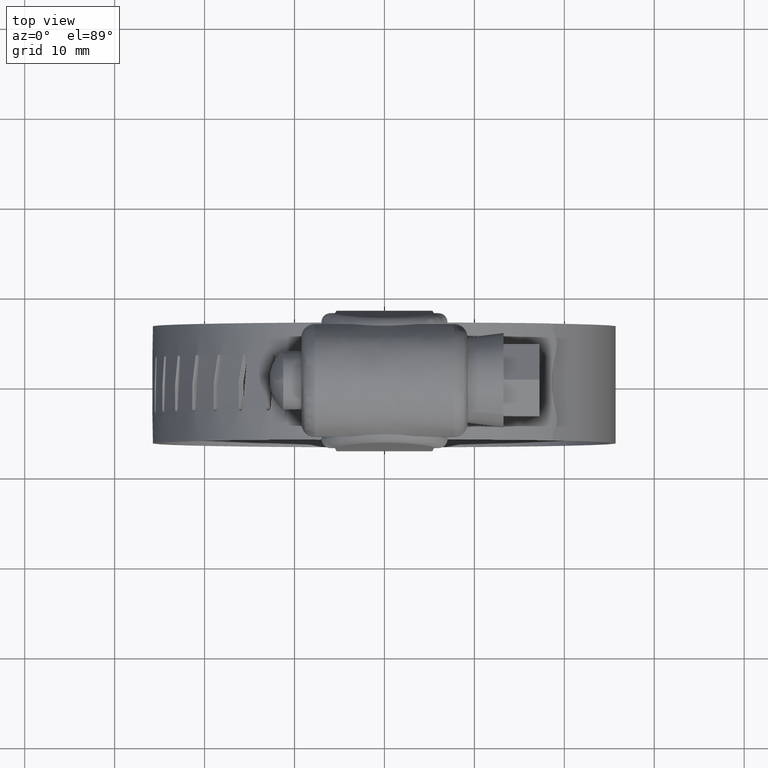
[diagram: clean part render]
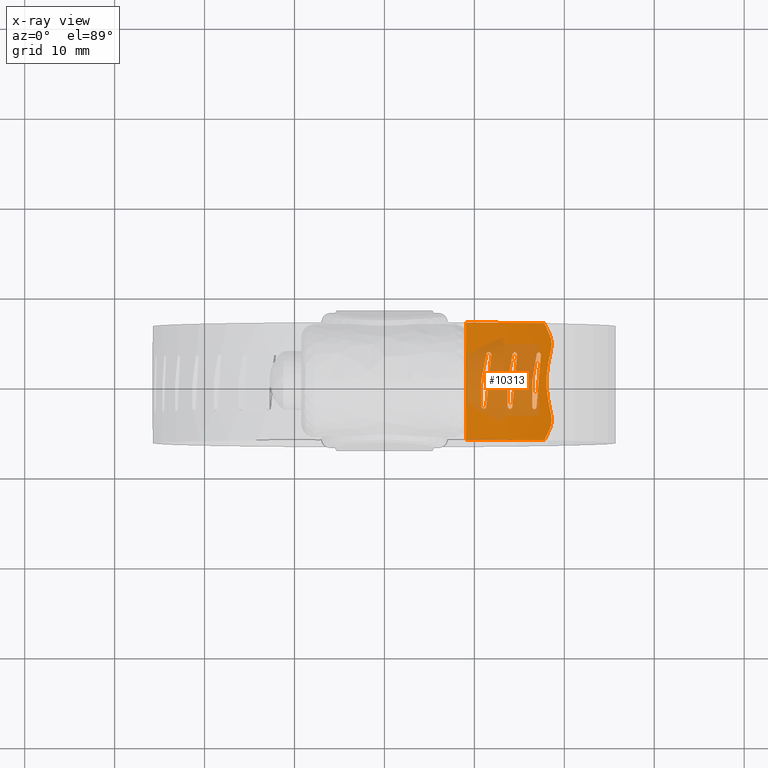
[diagram: x-ray — body ghosted, one internal face saturated and labeled with its STEP entity id]
A machine part, top view, then the same camera in x-ray: the body is ghosted and one INTERNAL B-rep face — a face not visible from any outside direction — is saturated and labeled: STEP entity #10313.
In plain terms, the highlighted face is a freeform B-spline surface patch.
Its self-contained STEP definition (entity closure, byte-faithful):
#3703=CARTESIAN_POINT('',(18.531749850765149,3.681800700683060,4.845432131543960));
#3704=VERTEX_POINT('',#3703);
#3710=CARTESIAN_POINT('',(18.372071879802899,5.226117512658741,4.993683557084380));
#3711=VERTEX_POINT('',#3710);
#3712=CARTESIAN_POINT('',(18.372071879802899,5.226117512658741,4.993683557084380));
#3713=CARTESIAN_POINT('',(18.428721101683500,5.097398075868691,4.940893515069665));
#3714=CARTESIAN_POINT('',(18.515501894939291,4.837661498247234,4.860053634746276));
#3715=CARTESIAN_POINT('',(18.599563676843101,4.313282900128496,4.781873289322854));
#3716=CARTESIAN_POINT('',(18.579124276364229,3.923649804685160,4.801122762537977));
#3717=CARTESIAN_POINT('',(18.531749850765149,3.681800700683060,4.845432131543960));
#3718=B_SPLINE_CURVE_WITH_KNOTS('',3,(#3712,#3713,#3714,#3715,#3716,#3717),.UNSPECIFIED.,.F.,.U.,(4,1,1,4),(0.000000013377488,0.450645718569237,0.851219328411695,1.602295761285598),.UNSPECIFIED.);
#3719=EDGE_CURVE('',#3711,#3704,#3718,.T.);
#3756=CARTESIAN_POINT('',(18.372071879802949,-5.226117512658870,4.993683557084300));
#3757=VERTEX_POINT('',#3756);
#3763=CARTESIAN_POINT('',(18.531749850765099,-3.681800700683050,4.845432131544020));
#3764=VERTEX_POINT('',#3763);
#3765=CARTESIAN_POINT('',(18.531749850765099,-3.681800700683050,4.845432131544020));
#3766=CARTESIAN_POINT('',(18.566477553637569,-3.859161243492954,4.813106576496261));
#3767=CARTESIAN_POINT('',(18.595172502507570,-4.176882024630355,4.786368814088042));
#3768=CARTESIAN_POINT('',(18.549992006251180,-4.710119230865465,4.828300633605239));
#3769=CARTESIAN_POINT('',(18.454058360740191,-5.040227927177436,4.917465894430944));
#3770=CARTESIAN_POINT('',(18.372071879802949,-5.226117512658870,4.993683557084300));
#3771=B_SPLINE_CURVE_WITH_KNOTS('',3,(#3765,#3766,#3767,#3768,#3769,#3770),.UNSPECIFIED.,.F.,.U.,(4,1,1,4),(0.000000013378688,0.550790148088924,0.951364039461560,1.602297993719811),.UNSPECIFIED.);
#3772=EDGE_CURVE('',#3764,#3757,#3771,.T.);
#3808=CARTESIAN_POINT('',(18.213016226979452,-2.061301204482720,5.138611565405960));
#3809=VERTEX_POINT('',#3808);
#3815=CARTESIAN_POINT('',(18.213016226979502,2.061301204482655,5.138611565405910));
#3816=VERTEX_POINT('',#3815);
#3817=CARTESIAN_POINT('',(18.213016226979502,2.061301204482655,5.138611565405910));
#3818=CARTESIAN_POINT('',(18.112457629859129,1.557781310917107,5.228369178004182));
#3819=CARTESIAN_POINT('',(17.993353794414261,0.588815301786837,5.334680087532984));
#3820=CARTESIAN_POINT('',(18.014611649058459,-0.805997070332391,5.315705536013385));
#3821=CARTESIAN_POINT('',(18.133430079847599,-1.662677442643645,5.209649375866770));
#3822=CARTESIAN_POINT('',(18.213016226979452,-2.061301204482720,5.138611565405960));
#3823=B_SPLINE_CURVE_WITH_KNOTS('',3,(#3817,#3818,#3819,#3820,#3821,#3822),.UNSPECIFIED.,.F.,.U.,(4,1,1,4),(6.487834E-009,1.563736920964242,2.931997803589093,4.169955152333706),.UNSPECIFIED.);
#3824=EDGE_CURVE('',#3816,#3809,#3823,.T.);
#8995=CARTESIAN_POINT('',(10.755661920870120,-0.159976000000114,9.658509644301040));
#8996=VERTEX_POINT('',#8995);
#9011=CARTESIAN_POINT('',(10.755661920870020,-2.747701999999965,9.658509644300890));
#9012=VERTEX_POINT('',#9011);
#9018=CARTESIAN_POINT('',(10.755661920870120,-0.159976000000114,9.658509644301040));
#9019=CARTESIAN_POINT('',(10.755661920870020,-2.747701999999965,9.658509644300890));
#9020=QUASI_UNIFORM_CURVE('',1,(#9018,#9019),.UNSPECIFIED.,.F.,.U.);
#9021=EDGE_CURVE('',#8996,#9012,#9020,.T.);
#9031=CARTESIAN_POINT('',(10.786279146039959,0.255129999999980,9.647118583808400));
#9032=VERTEX_POINT('',#9031);
#9046=CARTESIAN_POINT('',(10.786279146039959,0.255129999999980,9.647118583808400));
#9047=CARTESIAN_POINT('',(10.755661920870120,-0.159976000000114,9.658509644301040));
#9048=QUASI_UNIFORM_CURVE('',1,(#9046,#9047),.UNSPECIFIED.,.F.,.U.);
#9049=EDGE_CURVE('',#9032,#8996,#9048,.T.);
#9059=CARTESIAN_POINT('',(11.322736609040140,2.952297999999900,9.439474695730588));
#9060=VERTEX_POINT('',#9059);
#9074=CARTESIAN_POINT('',(11.322736609040140,2.952297999999900,9.439474695730588));
#9075=CARTESIAN_POINT('',(10.786279146039959,0.255129999999980,9.647118583808400));
#9076=QUASI_UNIFORM_CURVE('',1,(#9074,#9075),.UNSPECIFIED.,.F.,.U.);
#9077=EDGE_CURVE('',#9060,#9032,#9076,.T.);
#9100=CARTESIAN_POINT('',(11.875603650228721,2.889831999999900,9.209199134267740));
#9101=VERTEX_POINT('',#9100);
#9132=CARTESIAN_POINT('',(11.632041403289589,3.250697324277313,9.312714836548986));
#9133=VERTEX_POINT('',#9132);
#9134=CARTESIAN_POINT('',(11.632041403289589,3.250697324277313,9.312714836548986));
#9135=CARTESIAN_POINT('',(11.588613578229459,3.255752021100881,9.330830177831119));
#9136=CARTESIAN_POINT('',(11.514439350840000,3.245163773002378,9.361640920711844));
#9137=CARTESIAN_POINT('',(11.416234280023369,3.184347694458341,9.402117047985026));
#9138=CARTESIAN_POINT('',(11.343794209291270,3.088723026751191,9.431630424336111));
#9139=CARTESIAN_POINT('',(11.323110687820520,2.999620489108655,9.439639129679778));
#9140=CARTESIAN_POINT('',(11.322736609040140,2.952297999999900,9.439474695730588));
#9141=B_SPLINE_CURVE_WITH_KNOTS('',3,(#9134,#9135,#9136,#9137,#9138,#9139,#9140),.UNSPECIFIED.,.F.,.U.,(4,1,1,1,4),(0.000000118933733,0.141940418083594,0.236576205794060,0.362721514907868,0.504661681111708),.UNSPECIFIED.);
#9142=EDGE_CURVE('',#9133,#9060,#9141,.T.);
#9144=CARTESIAN_POINT('',(11.875603650228721,2.889831999999900,9.209199134267740));
#9145=CARTESIAN_POINT('',(11.882425002335300,2.925821900597792,9.206606379640260));
#9146=CARTESIAN_POINT('',(11.883865115317580,3.005826601008934,9.206540233581183));
#9147=CARTESIAN_POINT('',(11.842722805675830,3.120670246655562,9.224384154208197));
#9148=CARTESIAN_POINT('',(11.755067961074900,3.215083603738272,9.261402433792927));
#9149=CARTESIAN_POINT('',(11.675419389651831,3.245784680842094,9.294673381308481));
#9150=CARTESIAN_POINT('',(11.632041403289589,3.250697324277313,9.312714836548986));
#9151=B_SPLINE_CURVE_WITH_KNOTS('',3,(#9144,#9145,#9146,#9147,#9148,#9149,#9150),.UNSPECIFIED.,.F.,.U.,(4,1,1,1,4),(0.000000302845057,0.110178803302188,0.236122009980797,0.362024835110498,0.503692366461664),.UNSPECIFIED.);
#9152=EDGE_CURVE('',#9101,#9133,#9151,.T.);
#9162=CARTESIAN_POINT('',(11.322736609040000,-2.747702000000000,9.439474695730368));
#9163=VERTEX_POINT('',#9162);
#9177=CARTESIAN_POINT('',(11.322736609040000,-2.747702000000000,9.439474695730368));
#9178=CARTESIAN_POINT('',(11.875603650228721,2.889831999999900,9.209199134267740));
#9179=QUASI_UNIFORM_CURVE('',1,(#9177,#9178),.UNSPECIFIED.,.F.,.U.);
#9180=EDGE_CURVE('',#9163,#9101,#9179,.T.);
#9227=CARTESIAN_POINT('',(11.040017141032591,-3.047701921533778,9.550814833458686));
#9228=VERTEX_POINT('',#9227);
#9229=CARTESIAN_POINT('',(11.040017141032591,-3.047701921533778,9.550814833458686));
#9230=CARTESIAN_POINT('',(11.076821893877231,-3.047727719213054,9.536599011384972));
#9231=CARTESIAN_POINT('',(11.154960883060600,-3.031135907438981,9.506299197061404));
#9232=CARTESIAN_POINT('',(11.251453289672019,-2.958985255850101,9.468514260216777));
#9233=CARTESIAN_POINT('',(11.309808295543750,-2.856011556127145,9.445240360304588));
#9234=CARTESIAN_POINT('',(11.322417956780070,-2.782217471100631,9.439843807121369));
#9235=CARTESIAN_POINT('',(11.322736609040000,-2.747702000000000,9.439474695730368));
#9236=B_SPLINE_CURVE_WITH_KNOTS('',3,(#9229,#9230,#9231,#9232,#9233,#9234,#9235),.UNSPECIFIED.,.F.,.U.,(4,1,1,1,4),(0.000000236341869,0.118368037078563,0.251515569286743,0.369898720770105,0.473465913465799),.UNSPECIFIED.);
#9237=EDGE_CURVE('',#9228,#9163,#9236,.T.);
#9239=CARTESIAN_POINT('',(10.755661920870020,-2.747701999999965,9.658509644300890));
#9240=CARTESIAN_POINT('',(10.756292365318039,-2.797057160310758,9.658617942287771));
#9241=CARTESIAN_POINT('',(10.774634085612600,-2.870713325170354,9.652058415518383));
#9242=CARTESIAN_POINT('',(10.836984417228230,-2.963653109381317,9.628637857257623));
#9243=CARTESIAN_POINT('',(10.920346488483069,-3.029051444960962,9.596905118817764));
#9244=CARTESIAN_POINT('',(10.998585574889050,-3.047781693144976,9.566818496363320));
#9245=CARTESIAN_POINT('',(11.040017141032591,-3.047701921533778,9.550814833458686));
#9246=B_SPLINE_CURVE_WITH_KNOTS('',3,(#9239,#9240,#9241,#9242,#9243,#9244,#9245),.UNSPECIFIED.,.F.,.U.,(4,1,1,1,4),(0.000000205957075,0.148025932110320,0.222048530185676,0.340453081173145,0.473678424284603),.UNSPECIFIED.);
#9247=EDGE_CURVE('',#9012,#9228,#9246,.T.);
#9257=CARTESIAN_POINT('',(13.698748350135840,-0.159976000000114,8.325479089140609));
#9258=VERTEX_POINT('',#9257);
#9273=CARTESIAN_POINT('',(13.698748350135640,-2.747701999999965,8.325479089140389));
#9274=VERTEX_POINT('',#9273);
#9280=CARTESIAN_POINT('',(13.698748350135840,-0.159976000000114,8.325479089140609));
#9281=CARTESIAN_POINT('',(13.698748350135640,-2.747701999999965,8.325479089140389));
#9282=QUASI_UNIFORM_CURVE('',1,(#9280,#9281),.UNSPECIFIED.,.F.,.U.);
#9283=EDGE_CURVE('',#9258,#9274,#9282,.T.);
#9293=CARTESIAN_POINT('',(13.727482050536519,0.255129999999980,8.309937499951902));
#9294=VERTEX_POINT('',#9293);
#9308=CARTESIAN_POINT('',(13.727482050536519,0.255129999999980,8.309937499951902));
#9309=CARTESIAN_POINT('',(13.698748350135840,-0.159976000000114,8.325479089140609));
#9310=QUASI_UNIFORM_CURVE('',1,(#9308,#9309),.UNSPECIFIED.,.F.,.U.);
#9311=EDGE_CURVE('',#9294,#9258,#9310,.T.);
#9321=CARTESIAN_POINT('',(14.229816255630359,2.952297999999900,8.029648827779232));
#9322=VERTEX_POINT('',#9321);
#9336=CARTESIAN_POINT('',(14.229816255630359,2.952297999999900,8.029648827779232));
#9337=CARTESIAN_POINT('',(13.727482050536519,0.255129999999980,8.309937499951902));
#9338=QUASI_UNIFORM_CURVE('',1,(#9336,#9337),.UNSPECIFIED.,.F.,.U.);
#9339=EDGE_CURVE('',#9322,#9294,#9338,.T.);
#9362=CARTESIAN_POINT('',(14.745250487097760,2.889831999999900,7.724664790017380));
#9363=VERTEX_POINT('',#9362);
#9394=CARTESIAN_POINT('',(14.518467069768770,3.250697317928519,7.861072695521489));
#9395=VERTEX_POINT('',#9394);
#9396=CARTESIAN_POINT('',(14.518467069768770,3.250697317928519,7.861072695521489));
#9397=CARTESIAN_POINT('',(14.477979857052770,3.255754528527071,7.885058240477811));
#9398=CARTESIAN_POINT('',(14.418056175633501,3.246559569056024,7.920437343036269));
#9399=CARTESIAN_POINT('',(14.324430244815440,3.191789741164849,7.975421132212874));
#9400=CARTESIAN_POINT('',(14.251824244945629,3.099255764835148,8.017697232289116));
#9401=CARTESIAN_POINT('',(14.230212120653530,2.999609746322210,8.029758013462674));
#9402=CARTESIAN_POINT('',(14.229816255630359,2.952297999999900,8.029648827779232));
#9403=B_SPLINE_CURVE_WITH_KNOTS('',3,(#9396,#9397,#9398,#9399,#9400,#9401,#9402),.UNSPECIFIED.,.F.,.U.,(4,1,1,1,4),(0.000000118966180,0.141940331938517,0.205039246471225,0.362721294711938,0.504661374760768),.UNSPECIFIED.);
#9404=EDGE_CURVE('',#9395,#9322,#9403,.T.);
#9406=CARTESIAN_POINT('',(14.745250487097760,2.889831999999900,7.724664790017380));
#9407=CARTESIAN_POINT('',(14.751640266243831,2.925819902490897,7.721150374700229));
#9408=CARTESIAN_POINT('',(14.753067424368711,3.005829348492539,7.720878403440719));
#9409=CARTESIAN_POINT('',(14.714799519589990,3.120665773519722,7.744280634847740));
#9410=CARTESIAN_POINT('',(14.633157913140311,3.215093045090326,7.793134318389584));
#9411=CARTESIAN_POINT('',(14.558909999055871,3.245777144411740,7.837170300168279));
#9412=CARTESIAN_POINT('',(14.518467069768770,3.250697317928519,7.861072695521489));
#9413=B_SPLINE_CURVE_WITH_KNOTS('',3,(#9406,#9407,#9408,#9409,#9410,#9411,#9412),.UNSPECIFIED.,.F.,.U.,(4,1,1,1,4),(0.000000302846476,0.110178768409326,0.236121935254649,0.362024720478795,0.503692206985464),.UNSPECIFIED.);
#9414=EDGE_CURVE('',#9363,#9395,#9413,.T.);
#9424=CARTESIAN_POINT('',(14.229816255630359,-2.747702000000000,8.029648827779232));
#9425=VERTEX_POINT('',#9424);
#9439=CARTESIAN_POINT('',(14.229816255630359,-2.747702000000000,8.029648827779232));
#9440=CARTESIAN_POINT('',(14.745250487097760,2.889831999999900,7.724664790017380));
#9441=QUASI_UNIFORM_CURVE('',1,(#9439,#9440),.UNSPECIFIED.,.F.,.U.);
#9442=EDGE_CURVE('',#9425,#9363,#9441,.T.);
#9489=CARTESIAN_POINT('',(13.965345893731859,-3.047701921544975,8.179255043064925));
#9490=VERTEX_POINT('',#9489);
#9491=CARTESIAN_POINT('',(13.965345893731859,-3.047701921544975,8.179255043064925));
#9492=CARTESIAN_POINT('',(14.008445602240990,-3.047784657238257,8.155247047147268));
#9493=CARTESIAN_POINT('',(14.081512278022000,-3.026796709961574,8.114385621860391));
#9494=CARTESIAN_POINT('',(14.167789383076730,-2.950367657758241,8.065743364571169));
#9495=CARTESIAN_POINT('',(14.217825257356280,-2.856016087571731,8.037152813606651));
#9496=CARTESIAN_POINT('',(14.229550543773090,-2.782218683554972,8.030059561493935));
#9497=CARTESIAN_POINT('',(14.229816255630359,-2.747702000000000,8.029648827779232));
#9498=B_SPLINE_CURVE_WITH_KNOTS('',3,(#9491,#9492,#9493,#9494,#9495,#9496,#9497),.UNSPECIFIED.,.F.,.U.,(4,1,1,1,4),(0.000000236341146,0.147959430396395,0.251515402743837,0.369898475892163,0.473465600013614),.UNSPECIFIED.);
#9499=EDGE_CURVE('',#9490,#9425,#9498,.T.);
#9501=CARTESIAN_POINT('',(13.698748350135640,-2.747701999999965,8.325479089140389));
#9502=CARTESIAN_POINT('',(13.699293950707929,-2.787171668156547,8.325475581981415));
#9503=CARTESIAN_POINT('',(13.715002009490760,-2.870795291012926,8.317361939633052));
#9504=CARTESIAN_POINT('',(13.779567629304459,-2.973520140280186,8.282177708695611));
#9505=CARTESIAN_POINT('',(13.870482510580880,-3.035013947596902,8.232001866735477));
#9506=CARTESIAN_POINT('',(13.935176718903129,-3.047732694348785,8.196060936280402));
#9507=CARTESIAN_POINT('',(13.965345893731859,-3.047701921544975,8.179255043064925));
#9508=B_SPLINE_CURVE_WITH_KNOTS('',3,(#9501,#9502,#9503,#9504,#9505,#9506,#9507),.UNSPECIFIED.,.F.,.U.,(4,1,1,1,4),(0.000000205959462,0.118421076963226,0.251628231958747,0.370064498488739,0.473678095208348),.UNSPECIFIED.);
#9509=EDGE_CURVE('',#9274,#9490,#9508,.T.);
#9519=CARTESIAN_POINT('',(16.427641298537349,-0.159976000000114,6.595799925318890));
#9520=VERTEX_POINT('',#9519);
#9535=CARTESIAN_POINT('',(16.427641298537150,-2.747701999999965,6.595799925318840));
#9536=VERTEX_POINT('',#9535);
#9542=CARTESIAN_POINT('',(16.427641298537349,-0.159976000000114,6.595799925318890));
#9543=CARTESIAN_POINT('',(16.427641298537150,-2.747701999999965,6.595799925318840));
#9544=QUASI_UNIFORM_CURVE('',1,(#9542,#9543),.UNSPECIFIED.,.F.,.U.);
#9545=EDGE_CURVE('',#9520,#9536,#9544,.T.);
#9555=CARTESIAN_POINT('',(16.453932137324699,0.255129999999980,6.576410383527410));
#9556=VERTEX_POINT('',#9555);
#9570=CARTESIAN_POINT('',(16.453932137324699,0.255129999999980,6.576410383527410));
#9571=CARTESIAN_POINT('',(16.427641298537349,-0.159976000000114,6.595799925318890));
#9572=QUASI_UNIFORM_CURVE('',1,(#9570,#9571),.UNSPECIFIED.,.F.,.U.);
#9573=EDGE_CURVE('',#9556,#9520,#9572,.T.);
#9583=CARTESIAN_POINT('',(16.912364527524101,2.952297999999900,6.228933772843730));
#9584=VERTEX_POINT('',#9583);
#9598=CARTESIAN_POINT('',(16.912364527524101,2.952297999999900,6.228933772843730));
#9599=CARTESIAN_POINT('',(16.453932137324699,0.255129999999980,6.576410383527410));
#9600=QUASI_UNIFORM_CURVE('',1,(#9598,#9599),.UNSPECIFIED.,.F.,.U.);
#9601=EDGE_CURVE('',#9584,#9556,#9600,.T.);
#9624=CARTESIAN_POINT('',(17.380332375436250,2.889831999999900,5.855178816365420));
#9625=VERTEX_POINT('',#9624);
#9656=CARTESIAN_POINT('',(17.174742401530359,3.250697311889076,6.021823274380849));
#9657=VERTEX_POINT('',#9656);
#9658=CARTESIAN_POINT('',(17.174742401530359,3.250697311889076,6.021823274380849));
#9659=CARTESIAN_POINT('',(17.129817341203260,3.256965933790909,6.057743788534452));
#9660=CARTESIAN_POINT('',(17.049858024687740,3.237887963560139,6.121434807033525));
#9661=CARTESIAN_POINT('',(16.974301966737190,3.160509999916735,6.181144056191251));
#9662=CARTESIAN_POINT('',(16.926312238720762,3.067741855968122,6.218719959547319));
#9663=CARTESIAN_POINT('',(16.912759395623159,2.999626553910123,6.228996784482030));
#9664=CARTESIAN_POINT('',(16.912364527524101,2.952297999999900,6.228933772843730));
#9665=B_SPLINE_CURVE_WITH_KNOTS('',3,(#9658,#9659,#9660,#9661,#9662,#9663,#9664),.UNSPECIFIED.,.F.,.U.,(4,1,1,1,4),(0.000000118996361,0.173481377413054,0.299622275439196,0.362721085250155,0.504661083344051),.UNSPECIFIED.);
#9666=EDGE_CURVE('',#9657,#9584,#9665,.T.);
#9668=CARTESIAN_POINT('',(17.380332375436250,2.889831999999900,5.855178816365420));
#9669=CARTESIAN_POINT('',(17.386174298339789,2.925822359993450,5.850806495793099));
#9670=CARTESIAN_POINT('',(17.387541781615479,3.005827137173803,5.850344814622960));
#9671=CARTESIAN_POINT('',(17.352910427374990,3.120666678961560,5.878840078023951));
#9672=CARTESIAN_POINT('',(17.278860887208719,3.215092957692282,5.938583177709360));
#9673=CARTESIAN_POINT('',(17.211463876644729,3.245777791133571,5.992525328388616));
#9674=CARTESIAN_POINT('',(17.174742401530359,3.250697311889076,6.021823274380849));
#9675=B_SPLINE_CURVE_WITH_KNOTS('',3,(#9668,#9669,#9670,#9671,#9672,#9673,#9674),.UNSPECIFIED.,.F.,.U.,(4,1,1,1,4),(0.000000302847512,0.110178735217235,0.236121864171200,0.362024611435213,0.503692055283458),.UNSPECIFIED.);
#9676=EDGE_CURVE('',#9625,#9657,#9675,.T.);
#9686=CARTESIAN_POINT('',(16.912364527524549,-2.747702000000000,6.228933772844171));
#9687=VERTEX_POINT('',#9686);
#9701=CARTESIAN_POINT('',(16.912364527524549,-2.747702000000000,6.228933772844171));
#9702=CARTESIAN_POINT('',(17.380332375436250,2.889831999999900,5.855178816365420));
#9703=QUASI_UNIFORM_CURVE('',1,(#9701,#9702),.UNSPECIFIED.,.F.,.U.);
#9704=EDGE_CURVE('',#9687,#9625,#9703,.T.);
#9751=CARTESIAN_POINT('',(16.671291512727020,-3.047701921555628,6.413893438182485));
#9752=VERTEX_POINT('',#9751);
#9753=CARTESIAN_POINT('',(16.671291512727020,-3.047701921555628,6.413893438182485));
#9754=CARTESIAN_POINT('',(16.702751150121859,-3.047727077456544,6.390083181618621));
#9755=CARTESIAN_POINT('',(16.769517019968522,-3.031135903922340,6.339412569396045));
#9756=CARTESIAN_POINT('',(16.845240007459822,-2.964754289382302,6.281547489049531));
#9757=CARTESIAN_POINT('',(16.898445636364212,-2.865777819718301,6.240453032790949));
#9758=CARTESIAN_POINT('',(16.912137303464050,-2.792095425416550,6.229475948446686));
#9759=CARTESIAN_POINT('',(16.912364527524549,-2.747702000000000,6.228933772844171));
#9760=B_SPLINE_CURVE_WITH_KNOTS('',3,(#9753,#9754,#9755,#9756,#9757,#9758,#9759),.UNSPECIFIED.,.F.,.U.,(4,1,1,1,4),(0.000000236340221,0.118367884176892,0.251515244318152,0.340299899878362,0.473465301839142),.UNSPECIFIED.);
#9761=EDGE_CURVE('',#9752,#9687,#9760,.T.);
#9763=CARTESIAN_POINT('',(16.427641298537150,-2.747701999999965,6.595799925318840));
#9764=CARTESIAN_POINT('',(16.428275863572509,-2.797053692387440,6.595731197105079));
#9765=CARTESIAN_POINT('',(16.446207198891251,-2.880534285695783,6.582855901838657));
#9766=CARTESIAN_POINT('',(16.508596049927242,-2.978616714596582,6.536454420726748));
#9767=CARTESIAN_POINT('',(16.584689703537851,-3.035017879521212,6.479332791069000));
#9768=CARTESIAN_POINT('',(16.643754313339741,-3.047735284517498,6.434735419524229));
#9769=CARTESIAN_POINT('',(16.671291512727020,-3.047701921555628,6.413893438182485));
#9770=B_SPLINE_CURVE_WITH_KNOTS('',3,(#9763,#9764,#9765,#9766,#9767,#9768,#9769),.UNSPECIFIED.,.F.,.U.,(4,1,1,1,4),(0.000000205962173,0.148025731457423,0.251628065642023,0.370064253932259,0.473677782169250),.UNSPECIFIED.);
#9771=EDGE_CURVE('',#9536,#9752,#9770,.T.);
#9781=CARTESIAN_POINT('',(17.799072013543800,-6.500000000000000,5.503427464251250));
#9782=VERTEX_POINT('',#9781);
#9783=CARTESIAN_POINT('',(17.799072013543800,-6.500000000000000,5.503427464251250));
#9784=CARTESIAN_POINT('',(18.372071879802949,-5.226117512658870,4.993683557084300));
#9785=QUASI_UNIFORM_CURVE('',1,(#9783,#9784),.UNSPECIFIED.,.F.,.U.);
#9786=EDGE_CURVE('',#9782,#3757,#9785,.T.);
#9817=CARTESIAN_POINT('',(17.799072013543800,6.500000000000000,5.503427464251250));
#9818=VERTEX_POINT('',#9817);
#9819=CARTESIAN_POINT('',(18.372071879802899,5.226117512658741,4.993683557084380));
#9820=CARTESIAN_POINT('',(17.799072013543800,6.500000000000000,5.503427464251250));
#9821=QUASI_UNIFORM_CURVE('',1,(#9819,#9820),.UNSPECIFIED.,.F.,.U.);
#9822=EDGE_CURVE('',#3711,#9818,#9821,.T.);
#9843=CARTESIAN_POINT('',(18.531749850765099,-3.681800700683050,4.845432131544020));
#9844=CARTESIAN_POINT('',(18.213016226979452,-2.061301204482720,5.138611565405960));
#9845=QUASI_UNIFORM_CURVE('',1,(#9843,#9844),.UNSPECIFIED.,.F.,.U.);
#9846=EDGE_CURVE('',#3764,#3809,#9845,.T.);
#9857=CARTESIAN_POINT('',(18.213016226979502,2.061301204482655,5.138611565405910));
#9858=CARTESIAN_POINT('',(18.531749850765149,3.681800700683060,4.845432131543960));
#9859=QUASI_UNIFORM_CURVE('',1,(#9857,#9858),.UNSPECIFIED.,.F.,.U.);
#9860=EDGE_CURVE('',#3816,#3704,#9859,.T.);
#9895=CARTESIAN_POINT('',(9.035254974465129,6.500000000000000,10.221725197082600));
#9896=VERTEX_POINT('',#9895);
#9904=CARTESIAN_POINT('',(9.035254974465129,-6.500000000000000,10.221725197082600));
#9905=VERTEX_POINT('',#9904);
#9906=CARTESIAN_POINT('',(9.035254974465129,6.500000000000000,10.221725197082600));
#9907=CARTESIAN_POINT('',(9.035254974465129,-6.500000000000000,10.221725197082600));
#9908=QUASI_UNIFORM_CURVE('',1,(#9906,#9907),.UNSPECIFIED.,.F.,.U.);
#9909=EDGE_CURVE('',#9896,#9905,#9908,.T.);
#10123=CARTESIAN_POINT('',(17.799072013543800,-6.500000000000000,5.503427464251250));
#10124=CARTESIAN_POINT('',(16.571437915583541,-6.500000000000006,6.559992192842083));
#10125=CARTESIAN_POINT('',(14.713930056190790,-6.499999999999996,7.845551696416550));
#10126=CARTESIAN_POINT('',(11.715212553356910,-6.500000000000007,9.331303807713590));
#10127=CARTESIAN_POINT('',(10.090558943881071,-6.499999999999995,9.921429262684258));
#10128=CARTESIAN_POINT('',(9.035254974465129,-6.500000000000000,10.221725197082600));
#10129=B_SPLINE_CURVE_WITH_KNOTS('',3,(#10123,#10124,#10125,#10126,#10127,#10128),.UNSPECIFIED.,.F.,.U.,(4,1,1,4),(1.297403E-009,4.859012893979583,6.739916477519683,10.031506806427910),.UNSPECIFIED.);
#10130=EDGE_CURVE('',#9782,#9905,#10129,.T.);
#10179=CARTESIAN_POINT('',(17.799072013543800,6.500000000000000,5.503427464251250));
#10180=CARTESIAN_POINT('',(16.571437915583541,6.500000000000006,6.559992192842083));
#10181=CARTESIAN_POINT('',(14.713930056190790,6.499999999999996,7.845551696416550));
#10182=CARTESIAN_POINT('',(11.715212553356910,6.500000000000007,9.331303807713590));
#10183=CARTESIAN_POINT('',(10.090558943881071,6.499999999999995,9.921429262684258));
#10184=CARTESIAN_POINT('',(9.035254974465129,6.500000000000000,10.221725197082600));
#10185=B_SPLINE_CURVE_WITH_KNOTS('',3,(#10179,#10180,#10181,#10182,#10183,#10184),.UNSPECIFIED.,.F.,.U.,(4,1,1,4),(1.297403E-009,4.859012893979583,6.739916477519683,10.031506806427910),.UNSPECIFIED.);
#10186=EDGE_CURVE('',#9818,#9896,#10185,.T.);
#10257=CARTESIAN_POINT('',(8.508096345244640,6.825000000000000,10.365060786830799));
#10258=CARTESIAN_POINT('',(8.508096345244640,-6.833125000000001,10.365060786830799));
#10259=CARTESIAN_POINT('',(14.542484855033036,6.825000000000000,8.800500632650559));
#10260=CARTESIAN_POINT('',(14.542484855033036,-6.833125000000001,8.800500632650559));
#10261=CARTESIAN_POINT('',(18.975867423347207,6.825000000000001,4.417942912998398));
#10262=CARTESIAN_POINT('',(18.975867423347207,-6.833125000000002,4.417942912998398));
#10270=(BOUNDED_SURFACE()B_SPLINE_SURFACE(1,2,((#10257,#10259,#10261),(#10258,#10260,#10262)),.UNSPECIFIED.,.F.,.F.,.U.)B_SPLINE_SURFACE_WITH_KNOTS((2,2),(3,3),(0.0,13.658125000000000),(0.0,12.249750623690220),.UNSPECIFIED.)GEOMETRIC_REPRESENTATION_ITEM()RATIONAL_B_SPLINE_SURFACE(((0.997740650844751,0.961125460661446,0.992952861691785),(0.997740650844751,0.961125460661446,0.992952861691785)))REPRESENTATION_ITEM('')SURFACE());
#10271=ORIENTED_EDGE('',*,*,#9846,.F.);
#10272=ORIENTED_EDGE('',*,*,#3772,.T.);
#10273=ORIENTED_EDGE('',*,*,#9786,.F.);
#10274=ORIENTED_EDGE('',*,*,#10130,.T.);
#10275=ORIENTED_EDGE('',*,*,#9909,.F.);
#10276=ORIENTED_EDGE('',*,*,#10186,.F.);
#10277=ORIENTED_EDGE('',*,*,#9822,.F.);
#10278=ORIENTED_EDGE('',*,*,#3719,.T.);
#10279=ORIENTED_EDGE('',*,*,#9860,.F.);
#10280=ORIENTED_EDGE('',*,*,#3824,.T.);
#10281=EDGE_LOOP('',(#10271,#10272,#10273,#10274,#10275,#10276,#10277,#10278,#10279,#10280));
#10282=FACE_OUTER_BOUND('',#10281,.T.);
#10283=ORIENTED_EDGE('',*,*,#9283,.T.);
#10284=ORIENTED_EDGE('',*,*,#9509,.T.);
#10285=ORIENTED_EDGE('',*,*,#9499,.T.);
#10286=ORIENTED_EDGE('',*,*,#9442,.T.);
#10287=ORIENTED_EDGE('',*,*,#9414,.T.);
#10288=ORIENTED_EDGE('',*,*,#9404,.T.);
#10289=ORIENTED_EDGE('',*,*,#9339,.T.);
#10290=ORIENTED_EDGE('',*,*,#9311,.T.);
#10291=EDGE_LOOP('',(#10283,#10284,#10285,#10286,#10287,#10288,#10289,#10290));
#10292=FACE_BOUND('',#10291,.T.);
#10293=ORIENTED_EDGE('',*,*,#9545,.T.);
#10294=ORIENTED_EDGE('',*,*,#9771,.T.);
#10295=ORIENTED_EDGE('',*,*,#9761,.T.);
#10296=ORIENTED_EDGE('',*,*,#9704,.T.);
#10297=ORIENTED_EDGE('',*,*,#9676,.T.);
#10298=ORIENTED_EDGE('',*,*,#9666,.T.);
#10299=ORIENTED_EDGE('',*,*,#9601,.T.);
#10300=ORIENTED_EDGE('',*,*,#9573,.T.);
#10301=EDGE_LOOP('',(#10293,#10294,#10295,#10296,#10297,#10298,#10299,#10300));
#10302=FACE_BOUND('',#10301,.T.);
#10303=ORIENTED_EDGE('',*,*,#9021,.T.);
#10304=ORIENTED_EDGE('',*,*,#9247,.T.);
#10305=ORIENTED_EDGE('',*,*,#9237,.T.);
#10306=ORIENTED_EDGE('',*,*,#9180,.T.);
#10307=ORIENTED_EDGE('',*,*,#9152,.T.);
#10308=ORIENTED_EDGE('',*,*,#9142,.T.);
#10309=ORIENTED_EDGE('',*,*,#9077,.T.);
#10310=ORIENTED_EDGE('',*,*,#9049,.T.);
#10311=EDGE_LOOP('',(#10303,#10304,#10305,#10306,#10307,#10308,#10309,#10310));
#10312=FACE_BOUND('',#10311,.T.);
#10313=ADVANCED_FACE('',(#10282,#10292,#10302,#10312),#10270,.F.);